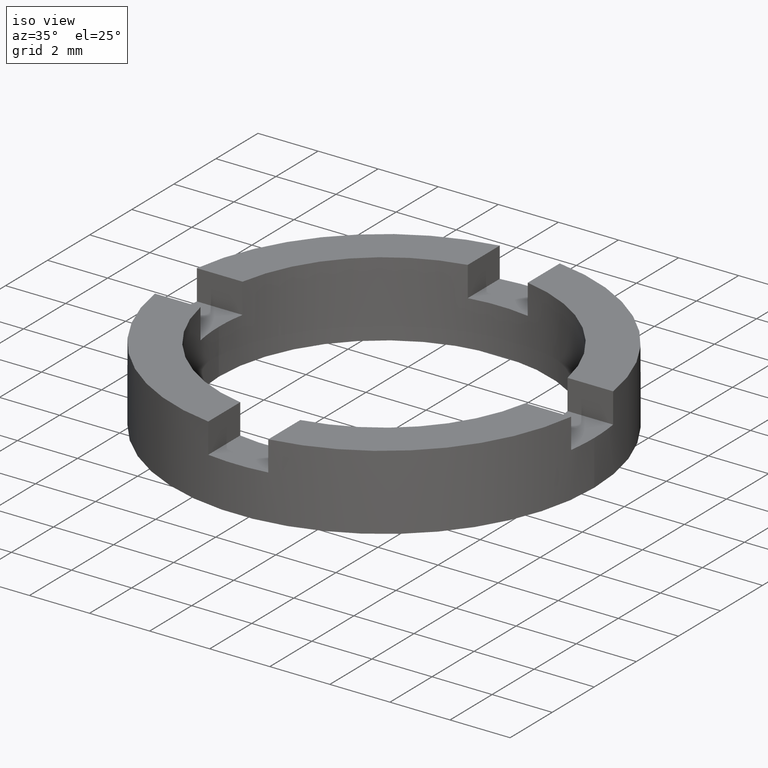
[diagram: clean part render]
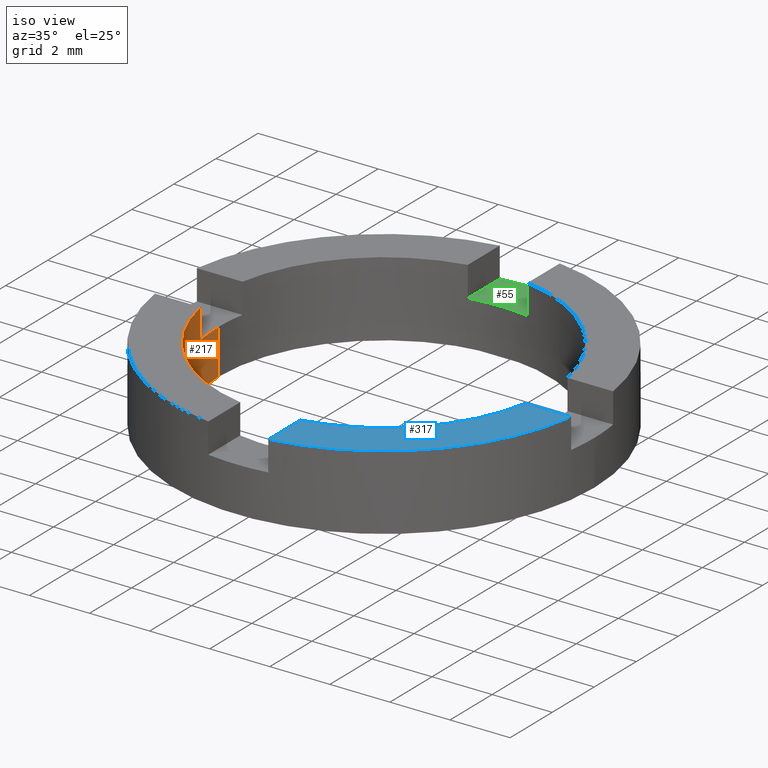
[diagram: same view with three faces highlighted in distinct colors, each labeled with its STEP entity id]
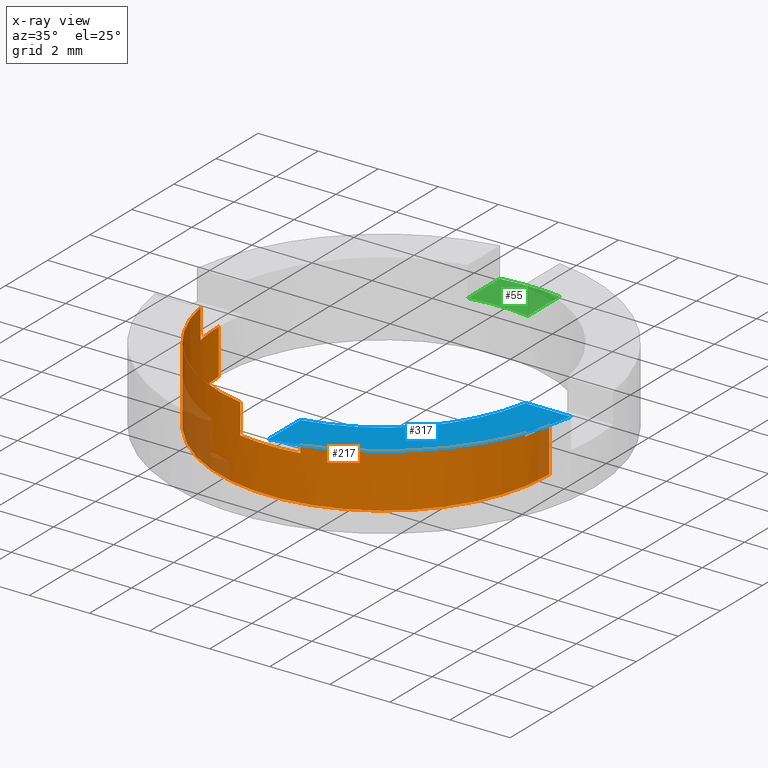
[diagram: x-ray of the same camera — body ghosted, the three highlighted faces saturated]
A machine part, iso view with three faces highlighted in distinct colors.
The next image is the same camera in x-ray (body ghosted, the three faces saturated) — at least one of them is partly hidden behind the body in this view.
Their STEP definitions:

[orange] entity #217 — the highlighted cylindrical surface (partial cylindrical patch) has radius 5.5 mm, axis along (-0, -0, -1).
#2 = EDGE_CURVE ( 'NONE', #9, #123, #534, .T. ) ;
#3 = VECTOR ( 'NONE', #378, 1000.000000000000000 ) ;
#6 = CYLINDRICAL_SURFACE ( 'NONE', #716, 5.500000000000000000 ) ;
#9 = VERTEX_POINT ( 'NONE', #593 ) ;
#13 = ORIENTED_EDGE ( 'NONE', *, *, #612, .F. ) ;
#16 = VERTEX_POINT ( 'NONE', #54 ) ;
#19 = ORIENTED_EDGE ( 'NONE', *, *, #2, .F. ) ;
#21 = CARTESIAN_POINT ( 'NONE',  ( 5.408326913195979913, -1.000000000000021538, 2.500000000000000000 ) ) ;
#38 = FACE_OUTER_BOUND ( 'NONE', #391, .T. ) ;
#48 = EDGE_CURVE ( 'NONE', #172, #459, #293, .T. ) ;
#49 = CARTESIAN_POINT ( 'NONE',  ( -5.408326913195986130, -0.9999999999999811262, 1.500000000000000000 ) ) ;
#50 = CARTESIAN_POINT ( 'NONE',  ( -0.9999999999999986677, -5.408326913195983465, 1.500000000000000000 ) ) ;
#51 = AXIS2_PLACEMENT_3D ( 'NONE', #333, #264, #125 ) ;
#54 = CARTESIAN_POINT ( 'NONE',  ( 5.500000000000000000, 6.735557395310442023E-16, 0.000000000000000000 ) ) ;
#56 = CARTESIAN_POINT ( 'NONE',  ( 5.500000000000000000, 6.735557395310442023E-16, 1.500000000000000000 ) ) ;
#58 = AXIS2_PLACEMENT_3D ( 'NONE', #530, #689, #344 ) ;
#72 = DIRECTION ( 'NONE',  ( 1.000000000000000000, 0.000000000000000000, 0.000000000000000000 ) ) ;
#84 = CARTESIAN_POINT ( 'NONE',  ( -0.9999999999999986677, -5.408326913195983465, 2.500000000000000000 ) ) ;
#89 = CARTESIAN_POINT ( 'NONE',  ( 1.000000000000001332, -5.408326913195982577, 1.500000000000000000 ) ) ;
#94 = EDGE_CURVE ( 'NONE', #166, #636, #543, .T. ) ;
#98 = ORIENTED_EDGE ( 'NONE', *, *, #598, .F. ) ;
#109 = ORIENTED_EDGE ( 'NONE', *, *, #702, .T. ) ;
#113 = CARTESIAN_POINT ( 'NONE',  ( 0.000000000000000000, 0.000000000000000000, 2.500000000000000000 ) ) ;
#123 = VERTEX_POINT ( 'NONE', #84 ) ;
#125 = DIRECTION ( 'NONE',  ( 1.000000000000000000, 7.105427357601001859E-15, 0.000000000000000000 ) ) ;
#129 = DIRECTION ( 'NONE',  ( -0.000000000000000000, -0.000000000000000000, 1.000000000000000000 ) ) ;
#143 = CARTESIAN_POINT ( 'NONE',  ( 5.500000000000000000, 6.735557395310442023E-16, 2.500000000000000000 ) ) ;
#157 = CARTESIAN_POINT ( 'NONE',  ( 5.408326913195979913, -1.000000000000021538, 1.500000000000000000 ) ) ;
#166 = VERTEX_POINT ( 'NONE', #56 ) ;
#169 = ORIENTED_EDGE ( 'NONE', *, *, #597, .T. ) ;
#171 = ORIENTED_EDGE ( 'NONE', *, *, #246, .F. ) ;
#172 = VERTEX_POINT ( 'NONE', #89 ) ;
#173 = ORIENTED_EDGE ( 'NONE', *, *, #561, .T. ) ;
#174 = CARTESIAN_POINT ( 'NONE',  ( -5.500000000000000000, 0.000000000000000000, 1.500000000000000000 ) ) ;
#176 = ORIENTED_EDGE ( 'NONE', *, *, #418, .F. ) ;
#184 = DIRECTION ( 'NONE',  ( 0.000000000000000000, 0.000000000000000000, 1.000000000000000000 ) ) ;
#194 = DIRECTION ( 'NONE',  ( 0.000000000000000000, -0.000000000000000000, -1.000000000000000000 ) ) ;
#215 = DIRECTION ( 'NONE',  ( 1.000000000000000000, 0.000000000000000000, 0.000000000000000000 ) ) ;
#217 = ADVANCED_FACE ( 'NONE', ( #38 ), #6, .F. ) ;
#219 = VECTOR ( 'NONE', #241, 1000.000000000000000 ) ;
#222 = LINE ( 'NONE', #49, #219 ) ;
#224 = CIRCLE ( 'NONE', #645, 5.500000000000000000 ) ;
#239 = LINE ( 'NONE', #157, #498 ) ;
#241 = DIRECTION ( 'NONE',  ( -0.000000000000000000, -0.000000000000000000, 1.000000000000000000 ) ) ;
#243 = LINE ( 'NONE', #720, #476 ) ;
#246 = EDGE_CURVE ( 'NONE', #430, #16, #778, .T. ) ;
#247 = VECTOR ( 'NONE', #291, 1000.000000000000000 ) ;
#264 = DIRECTION ( 'NONE',  ( 0.000000000000000000, -0.000000000000000000, -1.000000000000000000 ) ) ;
#285 = VECTOR ( 'NONE', #129, 1000.000000000000000 ) ;
#291 = DIRECTION ( 'NONE',  ( -0.000000000000000000, -0.000000000000000000, -1.000000000000000000 ) ) ;
#293 = LINE ( 'NONE', #335, #3 ) ;
#318 = CARTESIAN_POINT ( 'NONE',  ( -5.500000000000000000, 0.000000000000000000, 0.000000000000000000 ) ) ;
#326 = CARTESIAN_POINT ( 'NONE',  ( 1.000000000000001332, -5.408326913195982577, 2.500000000000000000 ) ) ;
#333 = CARTESIAN_POINT ( 'NONE',  ( 0.000000000000000000, 0.000000000000000000, 1.500000000000000000 ) ) ;
#335 = CARTESIAN_POINT ( 'NONE',  ( 1.000000000000001332, -5.408326913195982577, 1.500000000000000000 ) ) ;
#341 = AXIS2_PLACEMENT_3D ( 'NONE', #666, #194, #72 ) ;
#344 = DIRECTION ( 'NONE',  ( 1.000000000000000000, 0.000000000000000000, 0.000000000000000000 ) ) ;
#356 = CARTESIAN_POINT ( 'NONE',  ( -5.408326913195987018, -0.9999999999999813483, 1.500000000000000000 ) ) ;
#359 = AXIS2_PLACEMENT_3D ( 'NONE', #513, #576, #581 ) ;
#371 = CARTESIAN_POINT ( 'NONE',  ( -5.408326913195986130, -0.9999999999999811262, 2.500000000000000000 ) ) ;
#378 = DIRECTION ( 'NONE',  ( -0.000000000000000000, -0.000000000000000000, 1.000000000000000000 ) ) ;
#388 = CIRCLE ( 'NONE', #359, 5.500000000000000000 ) ;
#391 = EDGE_LOOP ( 'NONE', ( #435, #173, #171, #409, #98, #544, #169, #19, #13, #545, #109, #176 ) ) ;
#393 = VERTEX_POINT ( 'NONE', #174 ) ;
#404 = EDGE_CURVE ( 'NONE', #688, #632, #222, .T. ) ;
#408 = CARTESIAN_POINT ( 'NONE',  ( 0.000000000000000000, 0.000000000000000000, 0.000000000000000000 ) ) ;
#409 = ORIENTED_EDGE ( 'NONE', *, *, #613, .F. ) ;
#411 = AXIS2_PLACEMENT_3D ( 'NONE', #408, #540, #215 ) ;
#418 = EDGE_CURVE ( 'NONE', #636, #644, #239, .T. ) ;
#419 = DIRECTION ( 'NONE',  ( -0.000000000000000000, -0.000000000000000000, -1.000000000000000000 ) ) ;
#430 = VERTEX_POINT ( 'NONE', #318 ) ;
#435 = ORIENTED_EDGE ( 'NONE', *, *, #94, .F. ) ;
#459 = VERTEX_POINT ( 'NONE', #326 ) ;
#476 = VECTOR ( 'NONE', #583, 1000.000000000000000 ) ;
#481 = DIRECTION ( 'NONE',  ( -1.000000000000000000, 0.000000000000000000, 0.000000000000000000 ) ) ;
#483 = CIRCLE ( 'NONE', #341, 5.500000000000000000 ) ;
#498 = VECTOR ( 'NONE', #637, 1000.000000000000000 ) ;
#501 = CARTESIAN_POINT ( 'NONE',  ( 5.408326913195979913, -1.000000000000021538, 1.500000000000000000 ) ) ;
#513 = CARTESIAN_POINT ( 'NONE',  ( 0.000000000000000000, 0.000000000000000000, 2.500000000000000000 ) ) ;
#530 = CARTESIAN_POINT ( 'NONE',  ( 0.000000000000000000, 0.000000000000000000, 1.500000000000000000 ) ) ;
#534 = LINE ( 'NONE', #50, #285 ) ;
#540 = DIRECTION ( 'NONE',  ( 0.000000000000000000, 0.000000000000000000, 1.000000000000000000 ) ) ;
#543 = CIRCLE ( 'NONE', #58, 5.500000000000000000 ) ;
#544 = ORIENTED_EDGE ( 'NONE', *, *, #404, .T. ) ;
#545 = ORIENTED_EDGE ( 'NONE', *, *, #48, .T. ) ;
#561 = EDGE_CURVE ( 'NONE', #166, #16, #723, .T. ) ;
#576 = DIRECTION ( 'NONE',  ( 0.000000000000000000, 0.000000000000000000, 1.000000000000000000 ) ) ;
#581 = DIRECTION ( 'NONE',  ( 1.000000000000000000, 0.000000000000000000, 0.000000000000000000 ) ) ;
#583 = DIRECTION ( 'NONE',  ( -0.000000000000000000, -0.000000000000000000, -1.000000000000000000 ) ) ;
#593 = CARTESIAN_POINT ( 'NONE',  ( -0.9999999999999986677, -5.408326913195983465, 1.500000000000000000 ) ) ;
#597 = EDGE_CURVE ( 'NONE', #632, #123, #224, .T. ) ;
#598 = EDGE_CURVE ( 'NONE', #688, #393, #748, .T. ) ;
#612 = EDGE_CURVE ( 'NONE', #172, #9, #483, .T. ) ;
#613 = EDGE_CURVE ( 'NONE', #393, #430, #243, .T. ) ;
#632 = VERTEX_POINT ( 'NONE', #371 ) ;
#636 = VERTEX_POINT ( 'NONE', #501 ) ;
#637 = DIRECTION ( 'NONE',  ( -0.000000000000000000, -0.000000000000000000, 1.000000000000000000 ) ) ;
#644 = VERTEX_POINT ( 'NONE', #21 ) ;
#645 = AXIS2_PLACEMENT_3D ( 'NONE', #113, #184, #741 ) ;
#666 = CARTESIAN_POINT ( 'NONE',  ( 0.000000000000000000, 0.000000000000000000, 1.500000000000000000 ) ) ;
#688 = VERTEX_POINT ( 'NONE', #356 ) ;
#689 = DIRECTION ( 'NONE',  ( 0.000000000000000000, -0.000000000000000000, -1.000000000000000000 ) ) ;
#702 = EDGE_CURVE ( 'NONE', #459, #644, #388, .T. ) ;
#707 = CARTESIAN_POINT ( 'NONE',  ( 0.000000000000000000, 0.000000000000000000, 2.500000000000000000 ) ) ;
#716 = AXIS2_PLACEMENT_3D ( 'NONE', #707, #419, #481 ) ;
#720 = CARTESIAN_POINT ( 'NONE',  ( -5.500000000000000000, 0.000000000000000000, 2.500000000000000000 ) ) ;
#723 = LINE ( 'NONE', #143, #247 ) ;
#741 = DIRECTION ( 'NONE',  ( 1.000000000000000000, 0.000000000000000000, 0.000000000000000000 ) ) ;
#748 = CIRCLE ( 'NONE', #51, 5.500000000000000000 ) ;
#778 = CIRCLE ( 'NONE', #411, 5.500000000000000000 ) ;

[blue] entity #317 — the highlighted planar face has unit normal (0, 0, 1).
#21 = CARTESIAN_POINT ( 'NONE',  ( 5.408326913195979913, -1.000000000000021538, 2.500000000000000000 ) ) ;
#37 = EDGE_CURVE ( 'NONE', #394, #459, #550, .T. ) ;
#45 = CARTESIAN_POINT ( 'NONE',  ( 6.928203230275506108, -1.000000000000027089, 2.500000000000000000 ) ) ;
#57 = DIRECTION ( 'NONE',  ( 0.000000000000000000, 0.000000000000000000, 1.000000000000000000 ) ) ;
#61 = AXIS2_PLACEMENT_3D ( 'NONE', #111, #57, #461 ) ;
#88 = DIRECTION ( 'NONE',  ( 1.000000000000000000, 0.000000000000000000, -0.000000000000000000 ) ) ;
#92 = CARTESIAN_POINT ( 'NONE',  ( 1.000000000000001332, 0.000000000000000000, 2.500000000000000000 ) ) ;
#102 = ORIENTED_EDGE ( 'NONE', *, *, #37, .F. ) ;
#111 = CARTESIAN_POINT ( 'NONE',  ( 0.000000000000000000, 0.000000000000000000, 2.500000000000000000 ) ) ;
#275 = FACE_OUTER_BOUND ( 'NONE', #300, .T. ) ;
#281 = VECTOR ( 'NONE', #386, 1000.000000000000000 ) ;
#300 = EDGE_LOOP ( 'NONE', ( #708, #302, #102, #621 ) ) ;
#302 = ORIENTED_EDGE ( 'NONE', *, *, #702, .F. ) ;
#317 = ADVANCED_FACE ( 'NONE', ( #275 ), #320, .T. ) ;
#320 = PLANE ( 'NONE',  #482 ) ;
#326 = CARTESIAN_POINT ( 'NONE',  ( 1.000000000000001332, -5.408326913195982577, 2.500000000000000000 ) ) ;
#350 = CARTESIAN_POINT ( 'NONE',  ( 0.000000000000000000, 0.000000000000000000, 2.500000000000000000 ) ) ;
#357 = DIRECTION ( 'NONE',  ( 1.000000000000000000, -3.732753193842950078E-15, 0.000000000000000000 ) ) ;
#359 = AXIS2_PLACEMENT_3D ( 'NONE', #513, #576, #581 ) ;
#376 = EDGE_CURVE ( 'NONE', #394, #538, #504, .T. ) ;
#386 = DIRECTION ( 'NONE',  ( 0.000000000000000000, 1.000000000000000000, -0.000000000000000000 ) ) ;
#388 = CIRCLE ( 'NONE', #359, 5.500000000000000000 ) ;
#394 = VERTEX_POINT ( 'NONE', #471 ) ;
#454 = EDGE_CURVE ( 'NONE', #644, #538, #757, .T. ) ;
#459 = VERTEX_POINT ( 'NONE', #326 ) ;
#461 = DIRECTION ( 'NONE',  ( 1.000000000000000000, 0.000000000000000000, 0.000000000000000000 ) ) ;
#471 = CARTESIAN_POINT ( 'NONE',  ( 1.000000000000001332, -6.928203230275509661, 2.500000000000000000 ) ) ;
#482 = AXIS2_PLACEMENT_3D ( 'NONE', #350, #660, #88 ) ;
#489 = VECTOR ( 'NONE', #357, 1000.000000000000000 ) ;
#504 = CIRCLE ( 'NONE', #61, 7.000000000000000000 ) ;
#513 = CARTESIAN_POINT ( 'NONE',  ( 0.000000000000000000, 0.000000000000000000, 2.500000000000000000 ) ) ;
#538 = VERTEX_POINT ( 'NONE', #45 ) ;
#550 = LINE ( 'NONE', #92, #281 ) ;
#576 = DIRECTION ( 'NONE',  ( 0.000000000000000000, 0.000000000000000000, 1.000000000000000000 ) ) ;
#581 = DIRECTION ( 'NONE',  ( 1.000000000000000000, 0.000000000000000000, 0.000000000000000000 ) ) ;
#621 = ORIENTED_EDGE ( 'NONE', *, *, #376, .T. ) ;
#644 = VERTEX_POINT ( 'NONE', #21 ) ;
#660 = DIRECTION ( 'NONE',  ( 0.000000000000000000, 0.000000000000000000, 1.000000000000000000 ) ) ;
#702 = EDGE_CURVE ( 'NONE', #459, #644, #388, .T. ) ;
#708 = ORIENTED_EDGE ( 'NONE', *, *, #454, .F. ) ;
#719 = CARTESIAN_POINT ( 'NONE',  ( -3.732753193842954812E-15, -1.000000000000001332, 2.500000000000000000 ) ) ;
#757 = LINE ( 'NONE', #719, #489 ) ;

[green] entity #55 — the highlighted planar face has unit normal (-0, 0, 1).
#15 = DIRECTION ( 'NONE',  ( 0.000000000000000000, 1.000000000000000000, -0.000000000000000000 ) ) ;
#24 = FACE_OUTER_BOUND ( 'NONE', #392, .T. ) ;
#27 = ORIENTED_EDGE ( 'NONE', *, *, #537, .F. ) ;
#42 = CARTESIAN_POINT ( 'NONE',  ( 0.000000000000000000, 0.000000000000000000, 1.500000000000000000 ) ) ;
#55 = ADVANCED_FACE ( 'NONE', ( #24 ), #81, .T. ) ;
#81 = PLANE ( 'NONE',  #402 ) ;
#127 = VERTEX_POINT ( 'NONE', #668 ) ;
#146 = CARTESIAN_POINT ( 'NONE',  ( -0.9999999999999986677, 0.000000000000000000, 1.500000000000000000 ) ) ;
#212 = LINE ( 'NONE', #714, #731 ) ;
#233 = CARTESIAN_POINT ( 'NONE',  ( 1.000000000000001332, 5.408326913195982577, 1.500000000000000000 ) ) ;
#249 = CARTESIAN_POINT ( 'NONE',  ( -0.9999999999999986677, 5.408326913195983465, 1.500000000000000000 ) ) ;
#262 = AXIS2_PLACEMENT_3D ( 'NONE', #363, #431, #322 ) ;
#279 = ORIENTED_EDGE ( 'NONE', *, *, #727, .T. ) ;
#292 = DIRECTION ( 'NONE',  ( -0.000000000000000000, 0.000000000000000000, 1.000000000000000000 ) ) ;
#322 = DIRECTION ( 'NONE',  ( 1.000000000000000000, 7.993605777301125513E-15, 0.000000000000000000 ) ) ;
#363 = CARTESIAN_POINT ( 'NONE',  ( 0.000000000000000000, 0.000000000000000000, 1.500000000000000000 ) ) ;
#364 = CIRCLE ( 'NONE', #595, 7.000000000000000000 ) ;
#377 = ORIENTED_EDGE ( 'NONE', *, *, #656, .T. ) ;
#392 = EDGE_LOOP ( 'NONE', ( #27, #377, #641, #279 ) ) ;
#401 = VERTEX_POINT ( 'NONE', #249 ) ;
#402 = AXIS2_PLACEMENT_3D ( 'NONE', #514, #450, #582 ) ;
#428 = VERTEX_POINT ( 'NONE', #233 ) ;
#431 = DIRECTION ( 'NONE',  ( 0.000000000000000000, -0.000000000000000000, -1.000000000000000000 ) ) ;
#446 = DIRECTION ( 'NONE',  ( 1.000000000000000000, 0.000000000000000000, 0.000000000000000000 ) ) ;
#450 = DIRECTION ( 'NONE',  ( -0.000000000000000000, 0.000000000000000000, 1.000000000000000000 ) ) ;
#473 = LINE ( 'NONE', #146, #506 ) ;
#506 = VECTOR ( 'NONE', #617, 1000.000000000000000 ) ;
#514 = CARTESIAN_POINT ( 'NONE',  ( 0.000000000000000000, 0.000000000000000000, 1.500000000000000000 ) ) ;
#519 = CARTESIAN_POINT ( 'NONE',  ( 1.000000000000001332, 6.928203230275509661, 1.500000000000000000 ) ) ;
#537 = EDGE_CURVE ( 'NONE', #401, #127, #473, .T. ) ;
#582 = DIRECTION ( 'NONE',  ( 1.000000000000000000, 0.000000000000000000, 0.000000000000000000 ) ) ;
#595 = AXIS2_PLACEMENT_3D ( 'NONE', #42, #292, #446 ) ;
#617 = DIRECTION ( 'NONE',  ( 0.000000000000000000, 1.000000000000000000, -0.000000000000000000 ) ) ;
#641 = ORIENTED_EDGE ( 'NONE', *, *, #692, .T. ) ;
#656 = EDGE_CURVE ( 'NONE', #401, #428, #768, .T. ) ;
#668 = CARTESIAN_POINT ( 'NONE',  ( -0.9999999999999986677, 6.928203230275509661, 1.500000000000000000 ) ) ;
#692 = EDGE_CURVE ( 'NONE', #428, #709, #212, .T. ) ;
#709 = VERTEX_POINT ( 'NONE', #519 ) ;
#714 = CARTESIAN_POINT ( 'NONE',  ( 1.000000000000001332, 0.000000000000000000, 1.500000000000000000 ) ) ;
#727 = EDGE_CURVE ( 'NONE', #709, #127, #364, .T. ) ;
#731 = VECTOR ( 'NONE', #15, 1000.000000000000000 ) ;
#768 = CIRCLE ( 'NONE', #262, 5.500000000000000000 ) ;